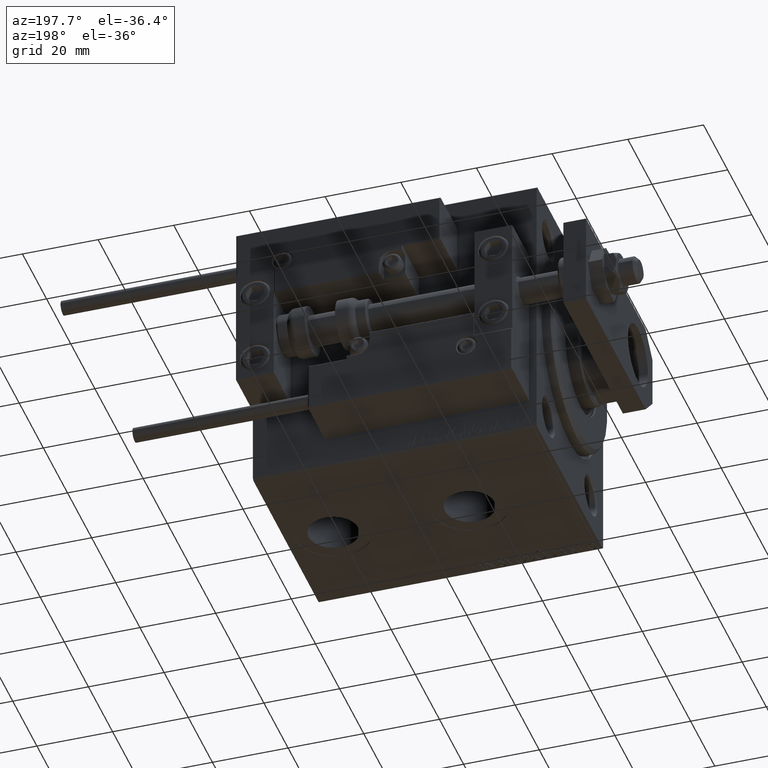
[diagram: clean part render]
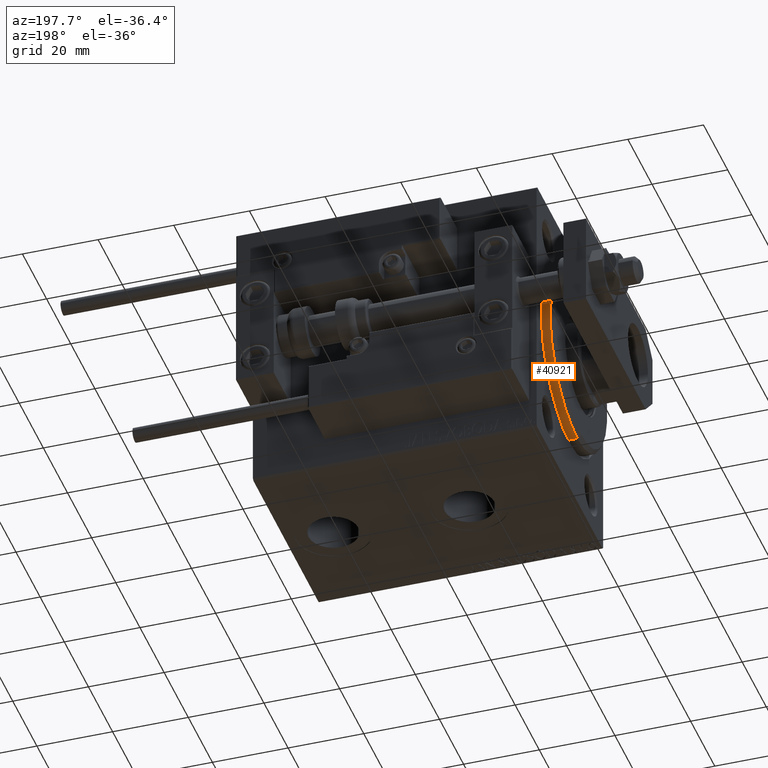
[diagram: same view with one face highlighted and labeled with its STEP entity id]
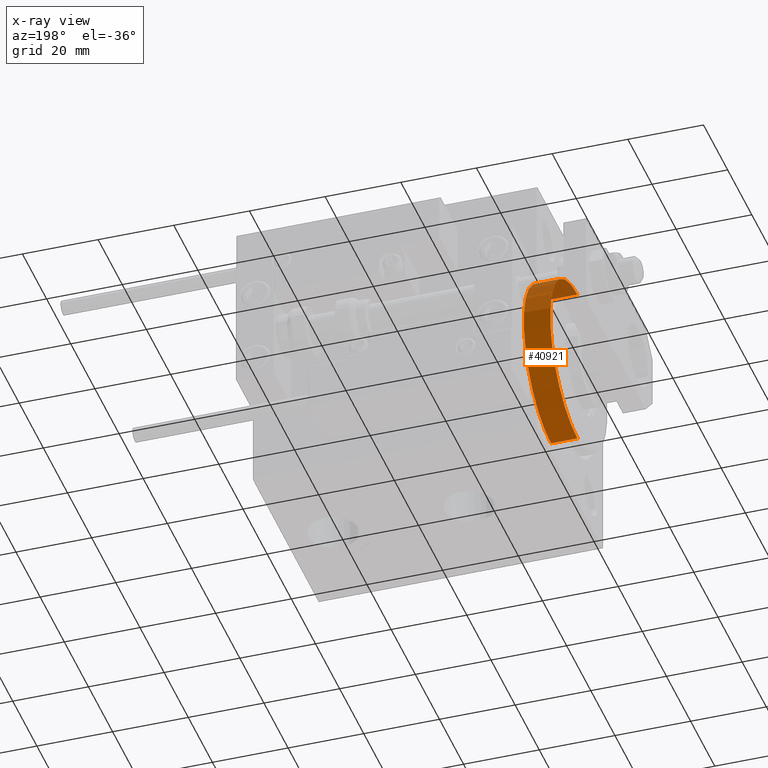
[diagram: x-ray of the same camera — body ghosted, the highlighted face saturated]
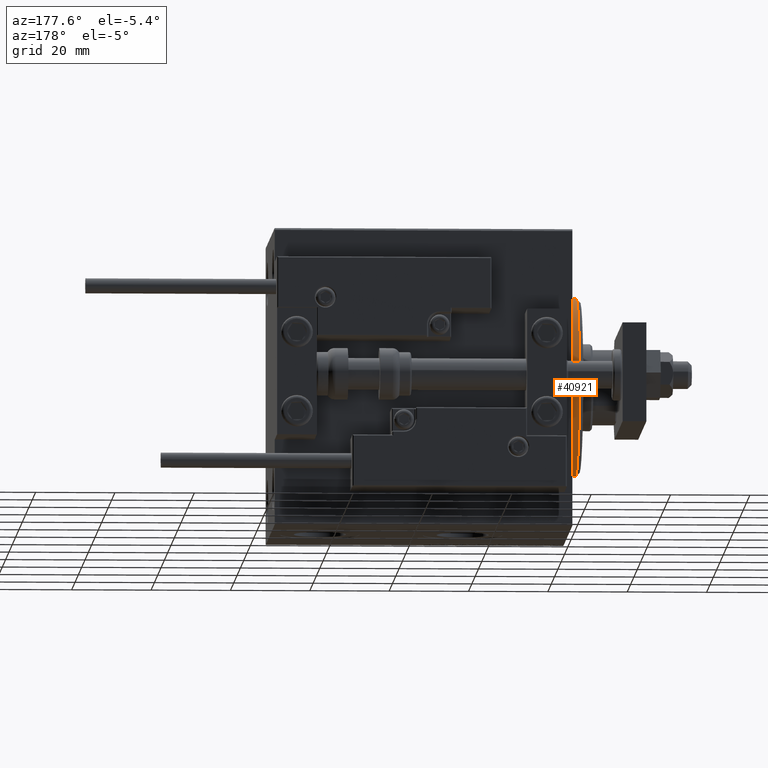
[diagram: same view with one face highlighted and labeled with its STEP entity id]
A machine part, auxiliary view. The second image highlights one B-rep face of the part: STEP entity #40921.
The next image is the same camera in x-ray: the body ghosted, the highlighted face saturated — about 13% of this face is hidden behind the body in this view.
A second angle (auxiliary view) of the same face is appended — the face is thin or edge-on in the first view.
In plain terms, the highlighted cylindrical surface (partial cylindrical patch) has radius 22.5 mm, axis along (1, -0, -0).
Its self-contained STEP definition (entity closure, byte-faithful):
#653 = DIRECTION ( 'NONE',  ( -1.000000000000000000, -0.000000000000000000, -0.000000000000000000 ) ) ;
#1506 = ORIENTED_EDGE ( 'NONE', *, *, #28601, .T. ) ;
#1723 = EDGE_CURVE ( 'NONE', #47713, #11703, #19881, .T. ) ;
#2400 = FACE_OUTER_BOUND ( 'NONE', #15501, .T. ) ;
#4473 = CARTESIAN_POINT ( 'NONE',  ( 1.999999999999999112, 2.755455298081545172E-15, -22.50000000000000355 ) ) ;
#5024 = VERTEX_POINT ( 'NONE', #39527 ) ;
#5776 = CARTESIAN_POINT ( 'NONE',  ( 3.000000000000000000, 0.000000000000000000, 0.000000000000000000 ) ) ;
#8057 = VECTOR ( 'NONE', #653, 1000.000000000000000 ) ;
#8368 = CIRCLE ( 'NONE', #16679, 22.50000000000000355 ) ;
#8707 = DIRECTION ( 'NONE',  ( -1.000000000000000000, -0.000000000000000000, -0.000000000000000000 ) ) ;
#9942 = DIRECTION ( 'NONE',  ( 0.000000000000000000, 0.000000000000000000, 1.000000000000000000 ) ) ;
#11703 = VERTEX_POINT ( 'NONE', #23093 ) ;
#12860 = DIRECTION ( 'NONE',  ( 0.000000000000000000, 0.000000000000000000, -1.000000000000000000 ) ) ;
#15501 = EDGE_LOOP ( 'NONE', ( #25359, #24738, #1506, #39813 ) ) ;
#16379 = DIRECTION ( 'NONE',  ( -1.000000000000000000, 0.000000000000000000, 0.000000000000000000 ) ) ;
#16679 = AXIS2_PLACEMENT_3D ( 'NONE', #20773, #16379, #32220 ) ;
#19443 = EDGE_CURVE ( 'NONE', #47713, #5024, #40102, .T. ) ;
#19881 = LINE ( 'NONE', #36248, #48616 ) ;
#20396 = VERTEX_POINT ( 'NONE', #41418 ) ;
#20773 = CARTESIAN_POINT ( 'NONE',  ( -5.000000000000000000, 0.000000000000000000, 0.000000000000000000 ) ) ;
#21152 = LINE ( 'NONE', #21661, #8057 ) ;
#21403 = CARTESIAN_POINT ( 'NONE',  ( 1.999999999999999112, 0.000000000000000000, 0.000000000000000000 ) ) ;
#21661 = CARTESIAN_POINT ( 'NONE',  ( 3.000000000000000000, 0.000000000000000000, 22.50000000000000355 ) ) ;
#23093 = CARTESIAN_POINT ( 'NONE',  ( -5.000000000000000000, 2.755455298081545172E-15, -22.50000000000000355 ) ) ;
#24738 = ORIENTED_EDGE ( 'NONE', *, *, #19443, .T. ) ;
#25359 = ORIENTED_EDGE ( 'NONE', *, *, #1723, .F. ) ;
#28601 = EDGE_CURVE ( 'NONE', #5024, #20396, #21152, .T. ) ;
#29425 = CYLINDRICAL_SURFACE ( 'NONE', #30120, 22.50000000000000355 ) ;
#30120 = AXIS2_PLACEMENT_3D ( 'NONE', #5776, #34343, #9942 ) ;
#31763 = EDGE_CURVE ( 'NONE', #11703, #20396, #8368, .T. ) ;
#32220 = DIRECTION ( 'NONE',  ( 0.000000000000000000, 0.000000000000000000, 1.000000000000000000 ) ) ;
#33446 = AXIS2_PLACEMENT_3D ( 'NONE', #21403, #44789, #12860 ) ;
#34343 = DIRECTION ( 'NONE',  ( -1.000000000000000000, -0.000000000000000000, -0.000000000000000000 ) ) ;
#36248 = CARTESIAN_POINT ( 'NONE',  ( 3.000000000000000000, 2.755455298081545172E-15, -22.50000000000000355 ) ) ;
#39527 = CARTESIAN_POINT ( 'NONE',  ( 1.999999999999999112, 0.000000000000000000, 22.50000000000000355 ) ) ;
#39813 = ORIENTED_EDGE ( 'NONE', *, *, #31763, .F. ) ;
#40102 = CIRCLE ( 'NONE', #33446, 22.50000000000000355 ) ;
#40921 = ADVANCED_FACE ( 'NONE', ( #2400 ), #29425, .T. ) ;
#41418 = CARTESIAN_POINT ( 'NONE',  ( -5.000000000000000000, 0.000000000000000000, 22.50000000000000355 ) ) ;
#44789 = DIRECTION ( 'NONE',  ( -1.000000000000000000, 0.000000000000000000, 0.000000000000000000 ) ) ;
#47713 = VERTEX_POINT ( 'NONE', #4473 ) ;
#48616 = VECTOR ( 'NONE', #8707, 1000.000000000000000 ) ;